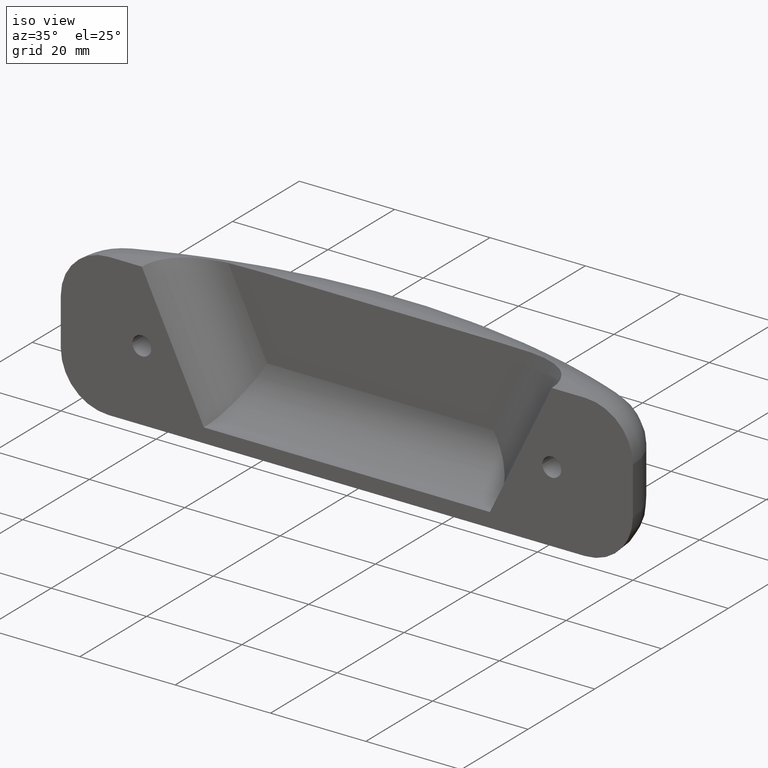
[diagram: clean part render]
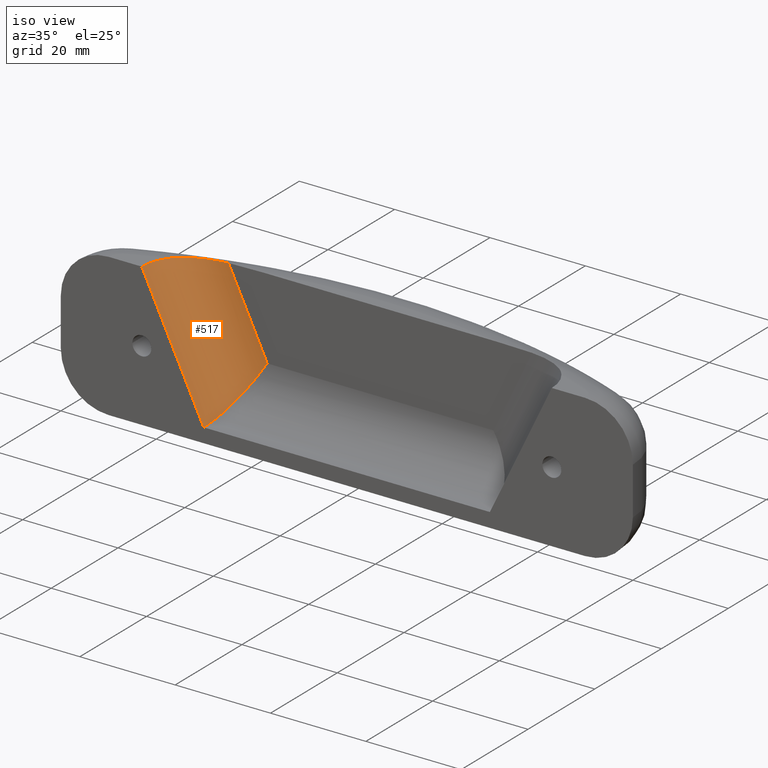
[diagram: same view with one face highlighted and labeled with its STEP entity id]
A machine part, iso view. The second image highlights one B-rep face of the part: STEP entity #517.
In plain terms, the highlighted cylindrical surface (partial cylindrical patch) has radius 10 mm, axis along (0.4338, 0, -0.901).
Its self-contained STEP definition (entity closure, byte-faithful):
#2 = EDGE_CURVE ( 'NONE', #364, #355, #146, .T. ) ;
#38 = LINE ( 'NONE', #495, #40 ) ;
#40 = VECTOR ( 'NONE', #496, 999.9999999999998900 ) ;
#47 = FACE_OUTER_BOUND ( 'NONE', #684, .T. ) ;
#48 = CYLINDRICAL_SURFACE ( 'NONE', #73, 9.999999999999996400 ) ;
#73 = AXIS2_PLACEMENT_3D ( 'NONE', #276, #277, #278 ) ;
#146 =( BOUNDED_CURVE ( )  B_SPLINE_CURVE ( 3, ( #383, #374, #376, #378 ),
 .UNSPECIFIED., .F., .T. ) 
 B_SPLINE_CURVE_WITH_KNOTS ( ( 4, 4 ),
 ( 3.141592653589793100, 3.713932221314978600 ),
 .UNSPECIFIED. ) 
 CURVE ( )  GEOMETRIC_REPRESENTATION_ITEM ( )  RATIONAL_B_SPLINE_CURVE ( ( 1.000000000000000000, 0.9728880684569010100, 0.9728880684569010100, 1.000000000000000000 ) ) 
 REPRESENTATION_ITEM ( '' )  );
#147 =( BOUNDED_CURVE ( )  B_SPLINE_CURVE ( 3, ( #731, #735, #765, #766 ),
 .UNSPECIFIED., .F., .T. ) 
 B_SPLINE_CURVE_WITH_KNOTS ( ( 4, 4 ),
 ( 1.570796326794896800, 3.141592653589793100 ),
 .UNSPECIFIED. ) 
 CURVE ( )  GEOMETRIC_REPRESENTATION_ITEM ( )  RATIONAL_B_SPLINE_CURVE ( ( 1.000000000000000000, 0.8047378541243650500, 0.8047378541243650500, 1.000000000000000000 ) ) 
 REPRESENTATION_ITEM ( '' )  );
#152 = EDGE_CURVE ( 'NONE', #373, #385, #647, .T. ) ;
#155 = EDGE_CURVE ( 'NONE', #385, #347, #147, .T. ) ;
#159 = EDGE_CURVE ( 'NONE', #355, #373, #541, .T. ) ;
#276 = CARTESIAN_POINT ( 'NONE',  ( -93.98998330240898700, -1.103965552094074800E-014, 34.33815618772897700 ) ) ;
#277 = DIRECTION ( 'NONE',  ( 0.4338156187728998700, 5.312709089503601800E-017, -0.9010016697590999000 ) ) ;
#278 = DIRECTION ( 'NONE',  ( -0.9010016697590997900, 0.0000000000000000000, -0.4338156187728999800 ) ) ;
#347 = VERTEX_POINT ( 'NONE', #473 ) ;
#355 = VERTEX_POINT ( 'NONE', #481 ) ;
#364 = VERTEX_POINT ( 'NONE', #490 ) ;
#369 = EDGE_CURVE ( 'NONE', #364, #347, #38, .T. ) ;
#373 = VERTEX_POINT ( 'NONE', #503 ) ;
#374 = CARTESIAN_POINT ( 'NONE',  ( -102.9999999999999900, 1.934308543391605200, 29.99999999999999600 ) ) ;
#376 = CARTESIAN_POINT ( 'NONE',  ( -102.3939896514859800, 3.789952825565726400, 29.99999999999999600 ) ) ;
#378 = CARTESIAN_POINT ( 'NONE',  ( -101.2312592877079400, 5.416002544282413600, 30.00000000000000000 ) ) ;
#383 = CARTESIAN_POINT ( 'NONE',  ( -103.0000000000000000, -1.261386203121773900E-014, 30.00000000000000000 ) ) ;
#385 = VERTEX_POINT ( 'NONE', #511 ) ;
#438 = CARTESIAN_POINT ( 'NONE',  ( -101.2312592877079400, 5.416002544282413600, 30.00000000000000000 ) ) ;
#439 = CARTESIAN_POINT ( 'NONE',  ( -100.6995507567934900, 6.159583802729520700, 30.00000000000000000 ) ) ;
#440 = CARTESIAN_POINT ( 'NONE',  ( -100.0716448574122800, 6.801400903035444800, 29.96154667965403500 ) ) ;
#441 = CARTESIAN_POINT ( 'NONE',  ( -99.01862418571249700, 7.648535248190969900, 29.90137543582478200 ) ) ;
#442 = CARTESIAN_POINT ( 'NONE',  ( -98.64605566071523400, 7.912432629644701600, 29.88026941427475300 ) ) ;
#443 = CARTESIAN_POINT ( 'NONE',  ( -97.87812999881998600, 8.392235948843994800, 29.84225185137766100 ) ) ;
#444 = CARTESIAN_POINT ( 'NONE',  ( -97.48276261621390400, 8.608663055440757700, 29.82530487897259500 ) ) ;
#445 = CARTESIAN_POINT ( 'NONE',  ( -96.67029957590615700, 8.997020270429574800, 29.79885070151317100 ) ) ;
#446 = CARTESIAN_POINT ( 'NONE',  ( -96.25319476760191200, 9.168930824457532900, 29.78933404366302900 ) ) ;
#447 = CARTESIAN_POINT ( 'NONE',  ( -95.39694754655826600, 9.467740954409961800, 29.77969172543412300 ) ) ;
#448 = CARTESIAN_POINT ( 'NONE',  ( -94.95844763676224400, 9.594035504741006200, 29.77964805374654800 ) ) ;
#449 = CARTESIAN_POINT ( 'NONE',  ( -93.63896549777983600, 9.896249048281889700, 29.79379237770879700 ) ) ;
#450 = CARTESIAN_POINT ( 'NONE',  ( -92.74464539025916600, 10.00000000000002100, 29.82295002767656200 ) ) ;
#451 = CARTESIAN_POINT ( 'NONE',  ( -91.83449836807743300, 9.999999999999989300, 29.86137978565571800 ) ) ;
#473 = CARTESIAN_POINT ( 'NONE',  ( -90.00000000000000000, -1.102182119232618100E-014, 2.999999999999999100 ) ) ;
#481 = CARTESIAN_POINT ( 'NONE',  ( -101.2312592877079400, 5.416002544282413600, 30.00000000000000000 ) ) ;
#490 = CARTESIAN_POINT ( 'NONE',  ( -103.0000000000000000, -1.261386203121773900E-014, 30.00000000000000000 ) ) ;
#495 = CARTESIAN_POINT ( 'NONE',  ( -103.0000000000000000, -1.261386203121773900E-014, 30.00000000000000000 ) ) ;
#496 = DIRECTION ( 'NONE',  ( 0.4338156187728998700, 5.312709089503601800E-017, -0.9010016697590997900 ) ) ;
#503 = CARTESIAN_POINT ( 'NONE',  ( -91.83449836807743300, 9.999999999999989300, 29.86137978565571800 ) ) ;
#511 = CARTESIAN_POINT ( 'NONE',  ( -83.71605624905801300, 9.999999999999989300, 13.00000000000000400 ) ) ;
#517 = ADVANCED_FACE ( 'NONE', ( #47 ), #48, .F. ) ;
#541 = B_SPLINE_CURVE_WITH_KNOTS ( 'NONE', 3,
 ( #438, #439, #440, #441, #442, #443, #444, #445, #446, #447, #448, #449, #450, #451 ),
 .UNSPECIFIED., .F., .F.,
 ( 4, 2, 2, 2, 2, 2, 4 ),
 ( 8.673617379884035500E-019, 0.002694784236104715600, 0.004042176354157088800, 0.005389568472209462500, 0.006736960590261835200, 0.008084352708314208900, 0.01077913694441891600 ),
 .UNSPECIFIED. ) ;
#647 = LINE ( 'NONE', #725, #649 ) ;
#649 = VECTOR ( 'NONE', #727, 1000.000000000000000 ) ;
#672 = ORIENTED_EDGE ( 'NONE', *, *, #2, .F. ) ;
#673 = ORIENTED_EDGE ( 'NONE', *, *, #369, .T. ) ;
#674 = ORIENTED_EDGE ( 'NONE', *, *, #155, .F. ) ;
#675 = ORIENTED_EDGE ( 'NONE', *, *, #152, .F. ) ;
#676 = ORIENTED_EDGE ( 'NONE', *, *, #159, .F. ) ;
#684 = EDGE_LOOP ( 'NONE', ( #672, #673, #674, #675, #676 ) ) ;
#725 = CARTESIAN_POINT ( 'NONE',  ( -93.98998330240898700, 9.999999999999989300, 34.33815618772897700 ) ) ;
#727 = DIRECTION ( 'NONE',  ( 0.4338156187728998700, 5.312709089503601800E-017, -0.9010016697590999000 ) ) ;
#731 = CARTESIAN_POINT ( 'NONE',  ( -83.71605624905801300, 9.999999999999989300, 13.00000000000000400 ) ) ;
#735 = CARTESIAN_POINT ( 'NONE',  ( -87.39710527317015500, 9.999999999999989300, 7.142135623730949200 ) ) ;
#765 = CARTESIAN_POINT ( 'NONE',  ( -90.00000000000001400, 5.857864376269039200, 2.999999999999998200 ) ) ;
#766 = CARTESIAN_POINT ( 'NONE',  ( -90.00000000000000000, -1.102182119232618100E-014, 2.999999999999999100 ) ) ;